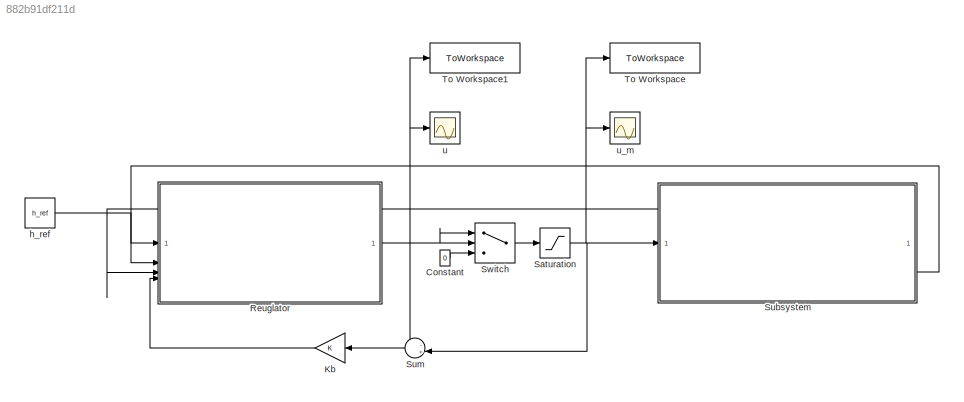
MODEL slx_882b91df211d
KIND model
CONFIG AbsTol = auto
CONFIG EnableMultiTasking = off
CONFIG FixedStep = 1/24
CONFIG MaxStep = auto
CONFIG MinStep = auto
CONFIG RelTol = 1e-3
CONFIG SampleTimeConstraint = Unconstrained
CONFIG SolverName = ode4
CONFIG StartTime = 0.0
CONFIG StopTime = t
BLOCK [Constant] Constant
  Value = 0
BLOCK [Gain] Kb
  NameLocation = top
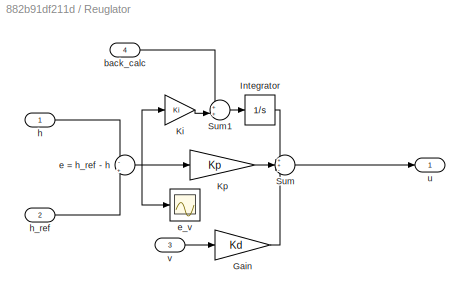
BLOCK [SubSystem] Reuglator
BLOCK [Gain] Reuglator/Gain
  Gain = Kd
BLOCK [Integrator] Reuglator/Integrator
BLOCK [Gain] Reuglator/Ki
  Gain = Ki
BLOCK [Gain] Reuglator/Kp
  Gain = Kp
BLOCK [Sum] Reuglator/Sum
  Inputs = ++-
BLOCK [Sum] Reuglator/Sum1
  Inputs = ++|
BLOCK [Inport] Reuglator/back_calc
  Port = 4
BLOCK [Sum] Reuglator/e = h_ref - h
  Inputs = -|+
  NameLocation = left
BLOCK [Scope] Reuglator/e_v
  Floating = off
  NumInputPorts = 1
  ScopeSpecificationString = Simulink.scopes.TimeScopeBlockCfg('CurrentConfiguration', extmgr.ConfigurationSet(extmgr.Configuration('Core','General UI',true),extmgr.Configuration('Core','Source UI',true),extmgr.Configuration('Sources','WiredSimulink',true,'DataLoggingVariableName','ScopeData6'),extmgr.Configuration('Visuals','Time Domain',true,'SerializedDisplays',{struct('MinYLimReal','-5624.99839','MaxYLimReal','624.98555',...<+1392ch>
BLOCK [Inport] Reuglator/h
BLOCK [Inport] Reuglator/h_ref
  Port = 2
BLOCK [Outport] Reuglator/u
BLOCK [Inport] Reuglator/v
  Port = 3
BLOCK [Saturate] Saturation
  LowerLimit = 0
  UpperLimit = F_th
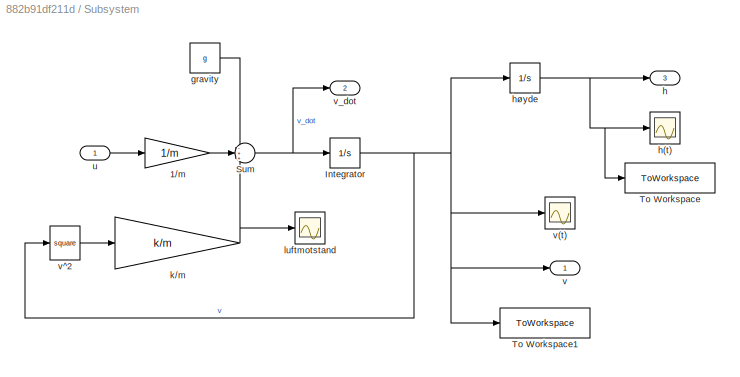
BLOCK [SubSystem] Subsystem
BLOCK [Gain] Subsystem/1//m
  Gain = 1/m
BLOCK [Integrator] Subsystem/Integrator
  InitialCondition = v_term
BLOCK [Sum] Subsystem/Sum
  Inputs = -++
BLOCK [ToWorkspace] Subsystem/To Workspace
  FixptAsFi = on
  MaxDataPoints = inf
  SampleTime = -1
  SaveFormat = Timeseries
  VariableName = h
BLOCK [ToWorkspace] Subsystem/To Workspace1
  FixptAsFi = on
  MaxDataPoints = inf
  SampleTime = -1
  SaveFormat = Timeseries
  VariableName = v
BLOCK [Constant] Subsystem/gravity
  Value = g
BLOCK [Outport] Subsystem/h
  Port = 3
BLOCK [Scope] Subsystem/h(t)
  Floating = off
  NumInputPorts = 1
  ScopeSpecificationString = Simulink.scopes.TimeScopeBlockCfg('CurrentConfiguration', extmgr.ConfigurationSet(extmgr.Configuration('Core','General UI',true),extmgr.Configuration('Core','Source UI',true),extmgr.Configuration('Sources','WiredSimulink',true,'DataLoggingVariableName','ScopeData1'),extmgr.Configuration('Visuals','Time Domain',true,'SerializedDisplays',{struct('MinYLimReal','-624.98555','MaxYLimReal','5624.99839',...<+1451ch>
BLOCK [Integrator] Subsystem/høyde
  InitialCondition = h0
BLOCK [Gain] Subsystem/k//m
  Gain = k/m
BLOCK [Scope] Subsystem/luftmotstand
  Floating = off
  NumInputPorts = 1
  ScopeSpecificationString = Simulink.scopes.TimeScopeBlockCfg('CurrentConfiguration', extmgr.ConfigurationSet(extmgr.Configuration('Core','General UI',true),extmgr.Configuration('Core','Source UI',true),extmgr.Configuration('Sources','WiredSimulink',true,'DataLoggingVariableName','ScopeData3'),extmgr.Configuration('Visuals','Time Domain',true,'SerializedDisplays',{struct('MinYLimReal','-1.22602','MaxYLimReal','11.03419','YLa...<+1385ch>
BLOCK [Inport] Subsystem/u
BLOCK [Outport] Subsystem/v
BLOCK [Scope] Subsystem/v(t)
  Floating = off
  NumInputPorts = 1
  ScopeSpecificationString = Simulink.scopes.TimeScopeBlockCfg('CurrentConfiguration', extmgr.ConfigurationSet(extmgr.Configuration('Core','General UI',true),extmgr.Configuration('Core','Source UI',true),extmgr.Configuration('Sources','WiredSimulink',true),extmgr.Configuration('Visuals','Time Domain',true,'SerializedDisplays',{struct('MinYLimReal','-238.05604','MaxYLimReal','32.50432','YLabelReal','','MinYLimMag',' 0.00000','...<+1406ch>
BLOCK [Math] Subsystem/v^2
  Operator = square
BLOCK [Outport] Subsystem/v_dot
  Port = 2
BLOCK [Sum] Sum
  Inputs = -+|
  NameLocation = top
BLOCK [Switch] Switch
  Criteria = u2 > Threshold
  InputSameDT = off
  SaturateOnIntegerOverflow = off
  Threshold = F_min
BLOCK [ToWorkspace] To Workspace
  FixptAsFi = on
  MaxDataPoints = inf
  SampleTime = -1
  SaveFormat = Timeseries
  VariableName = u_m
BLOCK [ToWorkspace] To Workspace1
  FixptAsFi = on
  MaxDataPoints = inf
  SampleTime = -1
  SaveFormat = Timeseries
  VariableName = u
BLOCK [Constant] h_ref
  Value = h_ref
BLOCK [Scope] u
  Floating = off
  NumInputPorts = 1
  ScopeSpecificationString = Simulink.scopes.TimeScopeBlockCfg('CurrentConfiguration', extmgr.ConfigurationSet(extmgr.Configuration('Core','General UI',true),extmgr.Configuration('Core','Source UI',true),extmgr.Configuration('Sources','WiredSimulink',true,'DataLoggingVariableName','ScopeData1'),extmgr.Configuration('Visuals','Time Domain',true,'SerializedDisplays',{struct('MinYLimReal','-533195505.14912','MaxYLimReal','625095...<+1426ch>
BLOCK [Scope] u_m
  Floating = off
  NumInputPorts = 1
  ScopeSpecificationString = Simulink.scopes.TimeScopeBlockCfg('CurrentConfiguration', extmgr.ConfigurationSet(extmgr.Configuration('Core','General UI',true),extmgr.Configuration('Core','Source UI',true),extmgr.Configuration('Sources','WiredSimulink',true,'DataLoggingVariableName','ScopeData2'),extmgr.Configuration('Visuals','Time Domain',true,'SerializedDisplays',{struct('MinYLimReal','-105625.00000','MaxYLimReal','950625.00...<+1455ch>
LINE Constant:1 -> Switch:3
LINE Kb:1 -> Reuglator:4
LINE Reuglator/Gain:1 -> Reuglator/Sum:3
LINE Reuglator/Integrator:1 -> Reuglator/Sum:1
LINE Reuglator/Ki:1 -> Reuglator/Sum1:2
LINE Reuglator/Kp:1 -> Reuglator/Sum:2
LINE Reuglator/Sum1:1 -> Reuglator/Integrator:1
LINE Reuglator/Sum:1 -> Reuglator/u:1
LINE Reuglator/back_calc:1 -> Reuglator/Sum1:1
NET Reuglator/e = h_ref - h:1 -> Reuglator/Ki:1, Reuglator/Kp:1, Reuglator/e_v:1
LINE Reuglator/h:1 -> Reuglator/e = h_ref - h:1
LINE Reuglator/h_ref:1 -> Reuglator/e = h_ref - h:2
LINE Reuglator/v:1 -> Reuglator/Gain:1
NET Reuglator:1 -> Sum:1, Switch:1, Switch:2, To Workspace1:1, u:1
NET Saturation:1 -> Subsystem:1, Sum:2, To Workspace:1, u_m:1
LINE Subsystem/1//m:1 -> Subsystem/Sum:2
NET Subsystem/Integrator:1 -> Subsystem/To Workspace1:1, Subsystem/høyde:1, Subsystem/v(t):1, Subsystem/v:1, Subsystem/v^2:1
NET Subsystem/Sum:1 -> Subsystem/Integrator:1, Subsystem/v_dot:1
LINE Subsystem/gravity:1 -> Subsystem/Sum:1
NET Subsystem/høyde:1 -> Subsystem/To Workspace:1, Subsystem/h(t):1, Subsystem/h:1
NET Subsystem/k//m:1 -> Subsystem/Sum:3, Subsystem/luftmotstand:1
LINE Subsystem/u:1 -> Subsystem/1//m:1
LINE Subsystem/v^2:1 -> Subsystem/k//m:1
LINE Subsystem:1 -> Reuglator:3
LINE Subsystem:3 -> Reuglator:1
LINE Sum:1 -> Kb:1
LINE Switch:1 -> Saturation:1
LINE h_ref:1 -> Reuglator:2
note: NET lines group one-source signal fan-out (src -> all destinations, sorted); 1:1 wires keep LINE
